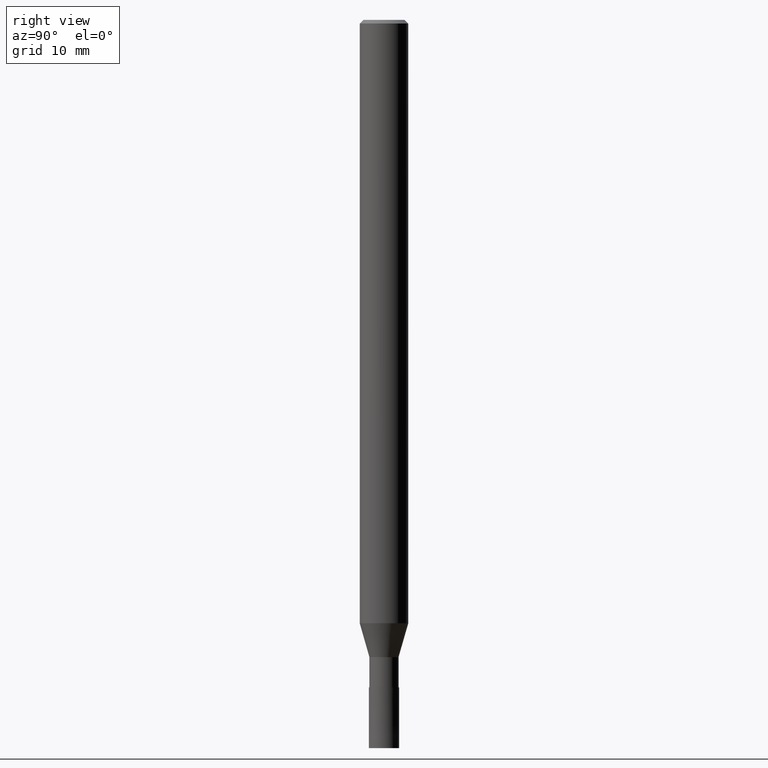
[diagram: clean part render]
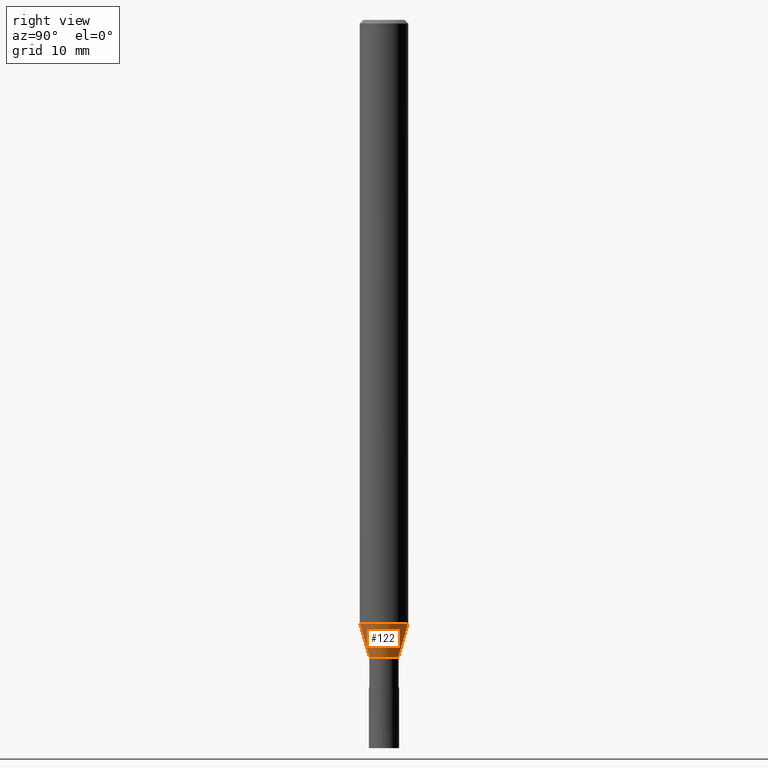
[diagram: same view with one face highlighted and labeled with its STEP entity id]
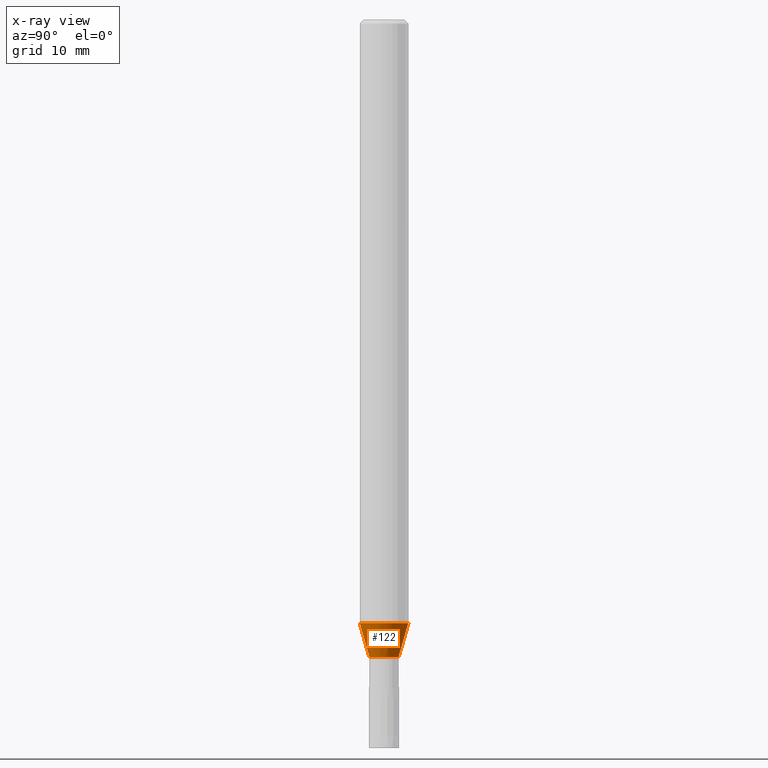
[diagram: x-ray of the same camera — body ghosted, the highlighted face saturated]
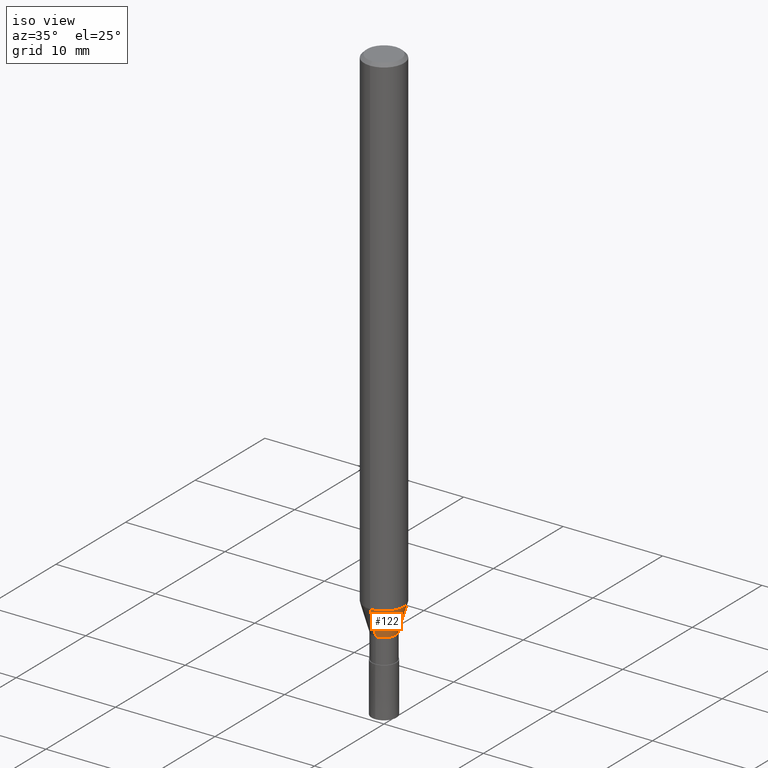
[diagram: same view with one face highlighted and labeled with its STEP entity id]
A machine part, right view. The second image highlights one B-rep face of the part: STEP entity #122.
The next image is the same camera in x-ray: the body ghosted, the highlighted face saturated — about 0% of this face is hidden behind the body in this view.
A second angle (iso view) of the same face is appended — the face is thin or edge-on in the first view.
In plain terms, the highlighted conical surface has half-angle 16 deg.
Its self-contained STEP definition (entity closure, byte-faithful):
#116=EDGE_CURVE('',#186,#172,#256,.T.);
#122=ADVANCED_FACE('',(#262),#263,.T.);
#150=EDGE_CURVE('',#180,#186,#296,.T.);
#152=EDGE_CURVE('',#172,#192,#298,.T.);
#172=VERTEX_POINT('',#321);
#180=VERTEX_POINT('',#329);
#186=VERTEX_POINT('',#337);
#192=VERTEX_POINT('',#343);
#206=EDGE_CURVE('',#180,#192,#359,.T.);
#256=CIRCLE('',#408,1.19995);
#262=FACE_OUTER_BOUND('',#413,.T.);
#263=CONICAL_SURFACE('',#414,1.59995,0.279246180255813);
#296=LINE('',#456,#457);
#298=LINE('',#460,#461);
#321=CARTESIAN_POINT('',(1.46946639426916E-016,-1.19995,-52.5));
#329=CARTESIAN_POINT('',(0.0,1.99995,-49.71));
#337=CARTESIAN_POINT('',(0.0,1.19995,-52.5));
#343=CARTESIAN_POINT('',(2.44915147732706E-016,-1.99995,-49.71));
#359=CIRCLE('',#537,1.99995);
#408=AXIS2_PLACEMENT_3D('',#576,#577,#578);
#413=EDGE_LOOP('',(#581,#582,#583,#584));
#414=AXIS2_PLACEMENT_3D('',#585,#586,#587);
#456=CARTESIAN_POINT('',(-1.95930893579811E-016,1.59995,-51.105));
#457=VECTOR('',#634,1.0);
#460=CARTESIAN_POINT('',(1.95930893579811E-016,-1.59995,-51.105));
#461=VECTOR('',#635,1.0);
#537=AXIS2_PLACEMENT_3D('',#708,#709,#710);
#576=CARTESIAN_POINT('',(0.0,0.0,-52.5));
#577=DIRECTION('',(0.0,0.0,-1.0));
#578=DIRECTION('',(0.0,1.0,0.0));
#581=ORIENTED_EDGE('',*,*,#150,.F.);
#582=ORIENTED_EDGE('',*,*,#206,.T.);
#583=ORIENTED_EDGE('',*,*,#152,.F.);
#584=ORIENTED_EDGE('',*,*,#116,.F.);
#585=CARTESIAN_POINT('',(0.0,0.0,-51.105));
#586=DIRECTION('',(-0.0,-0.0,1.0));
#587=DIRECTION('',(0.0,1.0,0.0));
#634=DIRECTION('',(3.37539605616001E-017,-0.275631107549324,-0.961263487578267));
#635=DIRECTION('',(3.37539605616001E-017,-0.275631107549324,0.961263487578267));
#708=CARTESIAN_POINT('',(0.0,0.0,-49.71));
#709=DIRECTION('',(0.0,0.0,-1.0));
#710=DIRECTION('',(0.0,1.0,0.0));